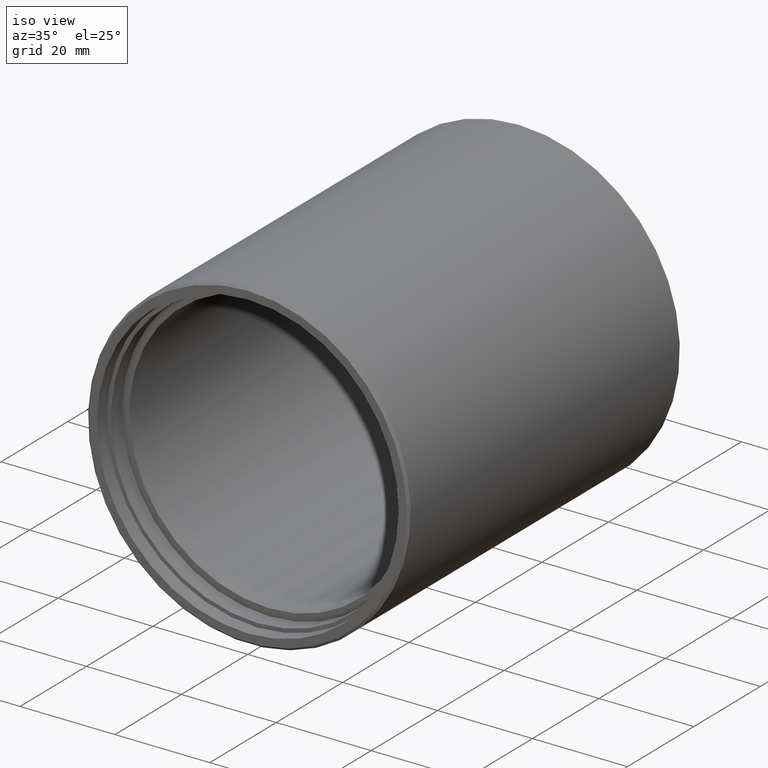
[diagram: clean part render]
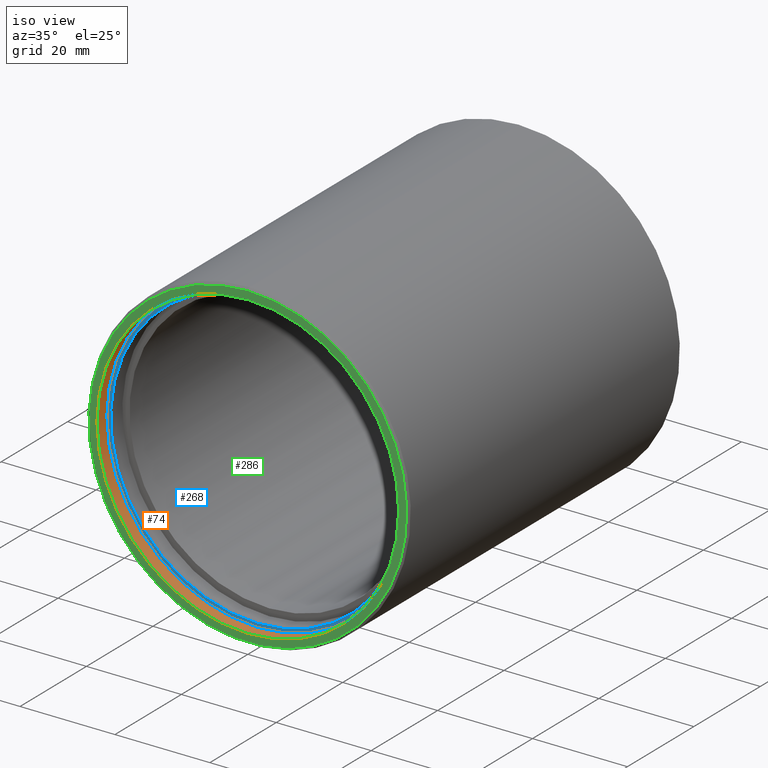
[diagram: same view with three faces highlighted in distinct colors, each labeled with its STEP entity id]
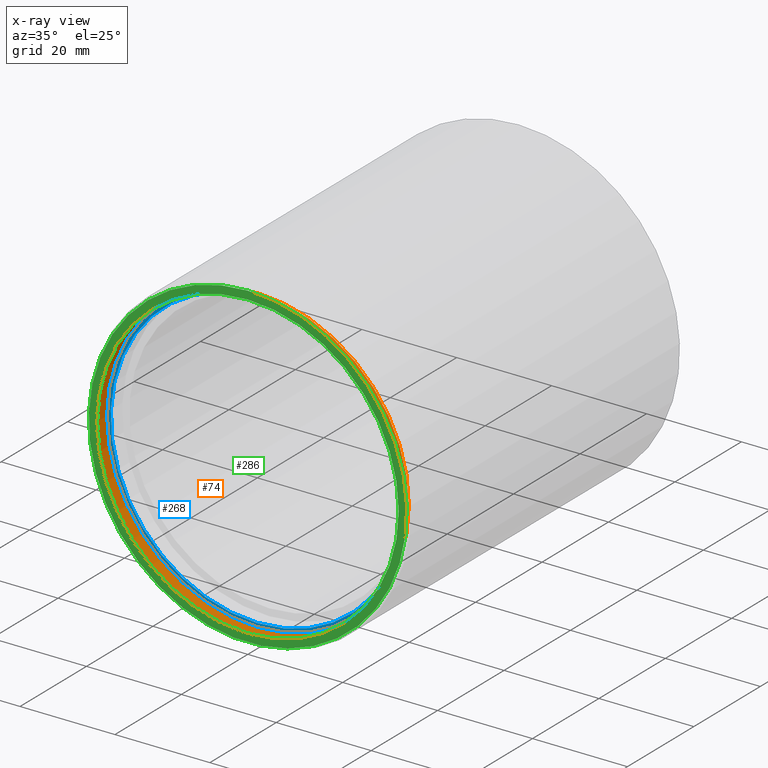
[diagram: x-ray of the same camera — body ghosted, the three highlighted faces saturated]
A machine part, iso view with three faces highlighted in distinct colors.
The next image is the same camera in x-ray (body ghosted, the three faces saturated) — at least one of them is partly hidden behind the body in this view.
Their STEP definitions:

[orange] entity #74 — the highlighted cylindrical surface (bore or boss wall) has radius 31.8 mm, axis along (-0, -1, -0).
#23 = DIRECTION ( 'NONE',  ( 0.000000000000000000, 0.000000000000000000, -1.000000000000000000 ) ) ;
#47 = AXIS2_PLACEMENT_3D ( 'NONE', #105, #323, #23 ) ;
#50 = ORIENTED_EDGE ( 'NONE', *, *, #111, .F. ) ;
#52 = VERTEX_POINT ( 'NONE', #81 ) ;
#55 = EDGE_LOOP ( 'NONE', ( #50 ) ) ;
#74 = ADVANCED_FACE ( 'NONE', ( #85, #340 ), #115, .F. ) ;
#81 = CARTESIAN_POINT ( 'NONE',  ( 0.000000000000000000, 0.000000000000000000, -31.80000000000000071 ) ) ;
#85 = FACE_OUTER_BOUND ( 'NONE', #55, .T. ) ;
#100 = DIRECTION ( 'NONE',  ( 0.000000000000000000, -1.000000000000000000, 0.000000000000000000 ) ) ;
#105 = CARTESIAN_POINT ( 'NONE',  ( 0.000000000000000000, 0.000000000000000000, 0.000000000000000000 ) ) ;
#108 = CIRCLE ( 'NONE', #47, 31.80000000000000071 ) ;
#109 = VERTEX_POINT ( 'NONE', #196 ) ;
#111 = EDGE_CURVE ( 'NONE', #109, #109, #213, .T. ) ;
#115 = CYLINDRICAL_SURFACE ( 'NONE', #271, 31.80000000000000071 ) ;
#169 = DIRECTION ( 'NONE',  ( -0.000000000000000000, -1.000000000000000000, -0.000000000000000000 ) ) ;
#196 = CARTESIAN_POINT ( 'NONE',  ( 0.000000000000000000, 3.000000000000000000, -31.80000000000000071 ) ) ;
#197 = CARTESIAN_POINT ( 'NONE',  ( 0.000000000000000000, 3.000000000000000000, 0.000000000000000000 ) ) ;
#213 = CIRCLE ( 'NONE', #244, 31.80000000000000071 ) ;
#215 = DIRECTION ( 'NONE',  ( 0.000000000000000000, 0.000000000000000000, -1.000000000000000000 ) ) ;
#244 = AXIS2_PLACEMENT_3D ( 'NONE', #310, #100, #215 ) ;
#256 = DIRECTION ( 'NONE',  ( 0.000000000000000000, 0.000000000000000000, -1.000000000000000000 ) ) ;
#260 = EDGE_LOOP ( 'NONE', ( #292 ) ) ;
#271 = AXIS2_PLACEMENT_3D ( 'NONE', #197, #169, #256 ) ;
#292 = ORIENTED_EDGE ( 'NONE', *, *, #334, .T. ) ;
#310 = CARTESIAN_POINT ( 'NONE',  ( 0.000000000000000000, 3.000000000000000000, 0.000000000000000000 ) ) ;
#323 = DIRECTION ( 'NONE',  ( 0.000000000000000000, -1.000000000000000000, 0.000000000000000000 ) ) ;
#334 = EDGE_CURVE ( 'NONE', #52, #52, #108, .T. ) ;
#340 = FACE_OUTER_BOUND ( 'NONE', #260, .T. ) ;

[blue] entity #268 — the highlighted planar face has unit normal (0, -1, 0).
#27 = CARTESIAN_POINT ( 'NONE',  ( 0.000000000000000000, 3.000000000000000000, -31.00000000000000000 ) ) ;
#73 = CARTESIAN_POINT ( 'NONE',  ( 0.000000000000000000, 3.000000000000000000, 0.000000000000000000 ) ) ;
#79 = VERTEX_POINT ( 'NONE', #27 ) ;
#94 = AXIS2_PLACEMENT_3D ( 'NONE', #73, #212, #240 ) ;
#100 = DIRECTION ( 'NONE',  ( 0.000000000000000000, -1.000000000000000000, 0.000000000000000000 ) ) ;
#109 = VERTEX_POINT ( 'NONE', #196 ) ;
#111 = EDGE_CURVE ( 'NONE', #109, #109, #213, .T. ) ;
#128 = FACE_BOUND ( 'NONE', #275, .T. ) ;
#134 = CIRCLE ( 'NONE', #222, 31.00000000000000000 ) ;
#135 = DIRECTION ( 'NONE',  ( 0.000000000000000000, 0.000000000000000000, -1.000000000000000000 ) ) ;
#138 = DIRECTION ( 'NONE',  ( 0.000000000000000000, -1.000000000000000000, 0.000000000000000000 ) ) ;
#145 = ORIENTED_EDGE ( 'NONE', *, *, #354, .F. ) ;
#196 = CARTESIAN_POINT ( 'NONE',  ( 0.000000000000000000, 3.000000000000000000, -31.80000000000000071 ) ) ;
#210 = PLANE ( 'NONE',  #94 ) ;
#212 = DIRECTION ( 'NONE',  ( 0.000000000000000000, -1.000000000000000000, 0.000000000000000000 ) ) ;
#213 = CIRCLE ( 'NONE', #244, 31.80000000000000071 ) ;
#215 = DIRECTION ( 'NONE',  ( 0.000000000000000000, 0.000000000000000000, -1.000000000000000000 ) ) ;
#222 = AXIS2_PLACEMENT_3D ( 'NONE', #281, #138, #135 ) ;
#240 = DIRECTION ( 'NONE',  ( 0.000000000000000000, -0.000000000000000000, -1.000000000000000000 ) ) ;
#244 = AXIS2_PLACEMENT_3D ( 'NONE', #310, #100, #215 ) ;
#268 = ADVANCED_FACE ( 'NONE', ( #128, #272 ), #210, .T. ) ;
#272 = FACE_OUTER_BOUND ( 'NONE', #314, .T. ) ;
#275 = EDGE_LOOP ( 'NONE', ( #145 ) ) ;
#281 = CARTESIAN_POINT ( 'NONE',  ( 0.000000000000000000, 3.000000000000000000, 0.000000000000000000 ) ) ;
#310 = CARTESIAN_POINT ( 'NONE',  ( 0.000000000000000000, 3.000000000000000000, 0.000000000000000000 ) ) ;
#314 = EDGE_LOOP ( 'NONE', ( #344 ) ) ;
#344 = ORIENTED_EDGE ( 'NONE', *, *, #111, .T. ) ;
#354 = EDGE_CURVE ( 'NONE', #79, #79, #134, .T. ) ;

[green] entity #286 — the highlighted planar face has unit normal (0, 1, 0).
#7 = EDGE_LOOP ( 'NONE', ( #31 ) ) ;
#8 = CARTESIAN_POINT ( 'NONE',  ( 0.000000000000000000, 0.000000000000000000, 0.000000000000000000 ) ) ;
#23 = DIRECTION ( 'NONE',  ( 0.000000000000000000, 0.000000000000000000, -1.000000000000000000 ) ) ;
#31 = ORIENTED_EDGE ( 'NONE', *, *, #334, .F. ) ;
#44 = FACE_OUTER_BOUND ( 'NONE', #147, .T. ) ;
#47 = AXIS2_PLACEMENT_3D ( 'NONE', #105, #323, #23 ) ;
#52 = VERTEX_POINT ( 'NONE', #81 ) ;
#58 = AXIS2_PLACEMENT_3D ( 'NONE', #351, #153, #266 ) ;
#72 = AXIS2_PLACEMENT_3D ( 'NONE', #8, #231, #202 ) ;
#81 = CARTESIAN_POINT ( 'NONE',  ( 0.000000000000000000, 0.000000000000000000, -31.80000000000000071 ) ) ;
#105 = CARTESIAN_POINT ( 'NONE',  ( 0.000000000000000000, 0.000000000000000000, 0.000000000000000000 ) ) ;
#107 = EDGE_CURVE ( 'NONE', #158, #158, #126, .T. ) ;
#108 = CIRCLE ( 'NONE', #47, 31.80000000000000071 ) ;
#126 = CIRCLE ( 'NONE', #72, 33.49999999999997868 ) ;
#147 = EDGE_LOOP ( 'NONE', ( #327 ) ) ;
#153 = DIRECTION ( 'NONE',  ( 0.000000000000000000, 1.000000000000000000, 0.000000000000000000 ) ) ;
#158 = VERTEX_POINT ( 'NONE', #247 ) ;
#202 = DIRECTION ( 'NONE',  ( 0.000000000000000000, 0.000000000000000000, 1.000000000000000000 ) ) ;
#231 = DIRECTION ( 'NONE',  ( -0.000000000000000000, -1.000000000000000000, -0.000000000000000000 ) ) ;
#245 = PLANE ( 'NONE',  #58 ) ;
#247 = CARTESIAN_POINT ( 'NONE',  ( 0.000000000000000000, 0.000000000000000000, 33.49999999999997868 ) ) ;
#266 = DIRECTION ( 'NONE',  ( 0.000000000000000000, -0.000000000000000000, 1.000000000000000000 ) ) ;
#286 = ADVANCED_FACE ( 'NONE', ( #319, #44 ), #245, .F. ) ;
#319 = FACE_BOUND ( 'NONE', #7, .T. ) ;
#323 = DIRECTION ( 'NONE',  ( 0.000000000000000000, -1.000000000000000000, 0.000000000000000000 ) ) ;
#327 = ORIENTED_EDGE ( 'NONE', *, *, #107, .T. ) ;
#334 = EDGE_CURVE ( 'NONE', #52, #52, #108, .T. ) ;
#351 = CARTESIAN_POINT ( 'NONE',  ( 0.000000000000000000, 0.000000000000000000, 0.000000000000000000 ) ) ;